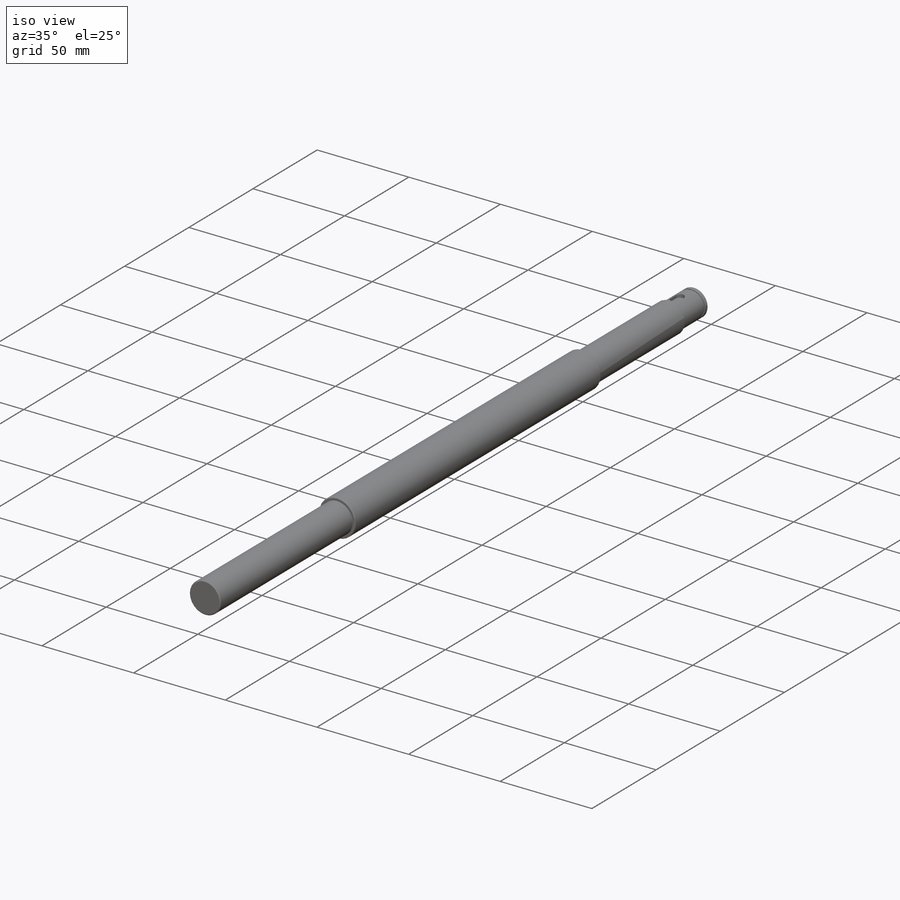
[diagram: iso view]
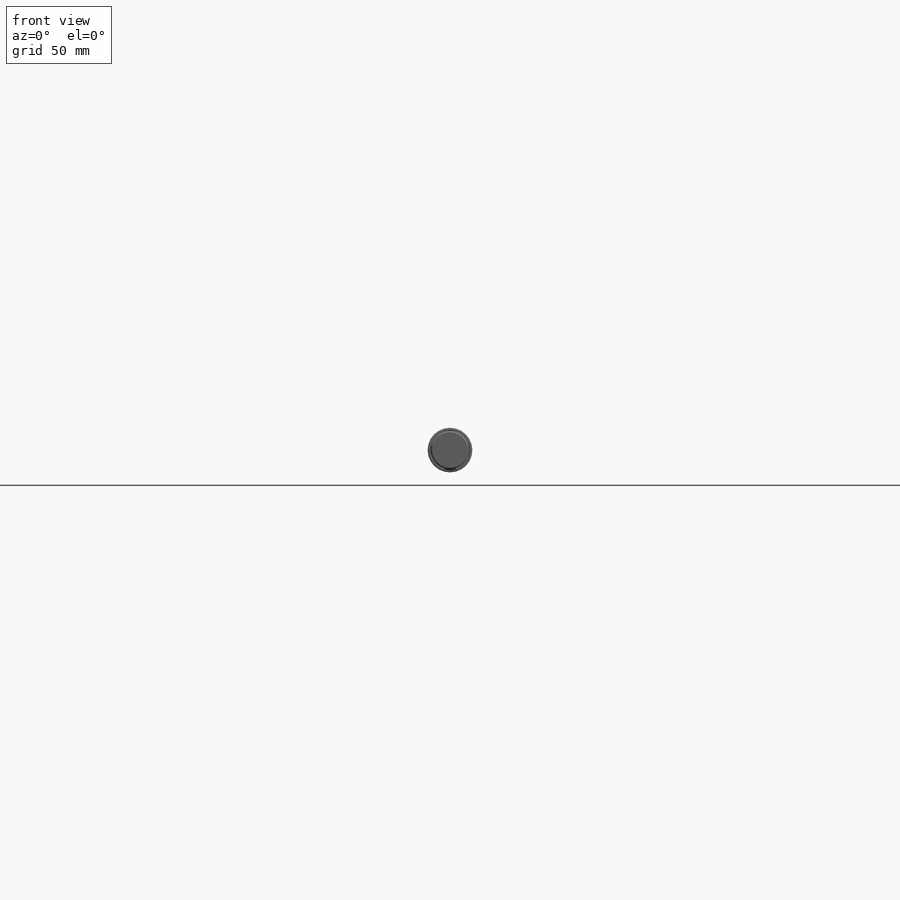
[diagram: front view]
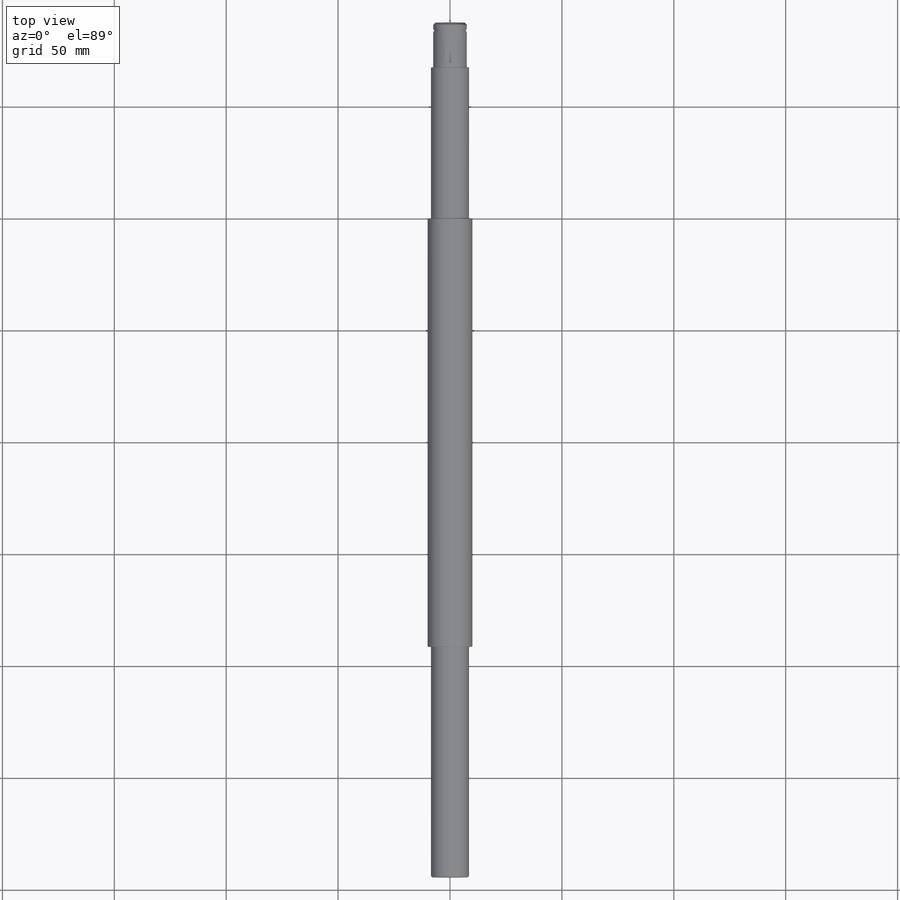
[diagram: top view]
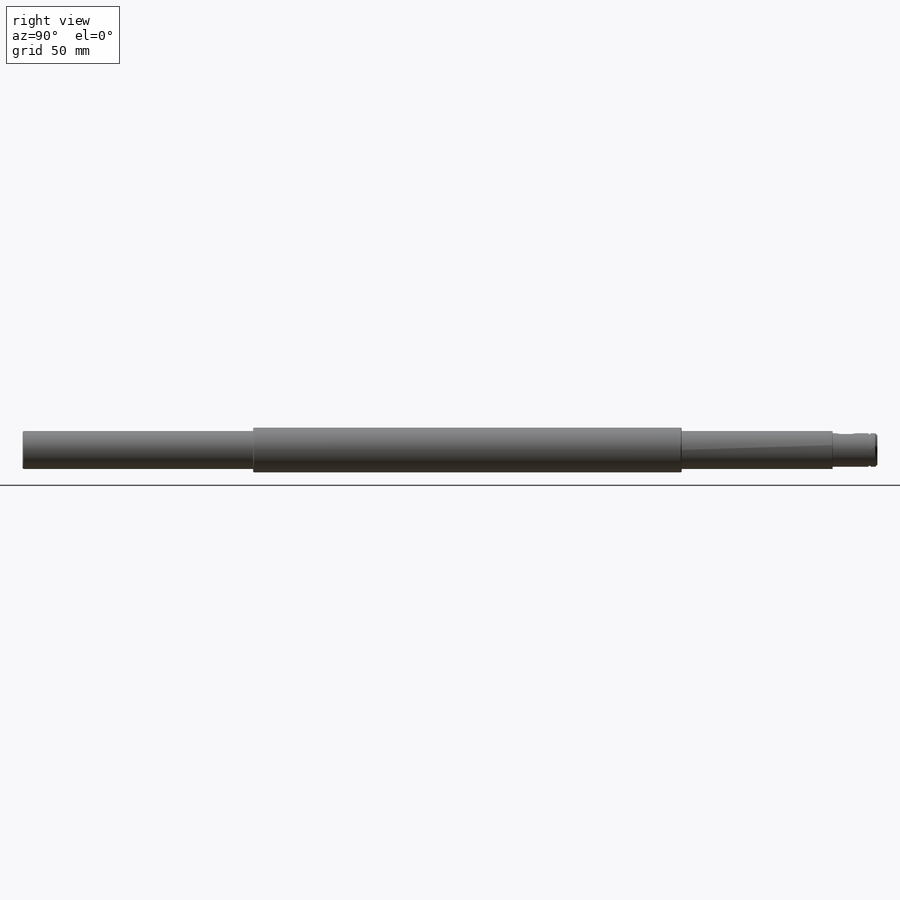
[diagram: right view]
SOLIDWORKS PART (.sldprt)
format: sldprt  version: not decoded by parser v0  size: 256,512 bytes
history: native  units: mm
features: sketch x6, extrude x4, fillet x3, plane x2, chamfer x2, material x1, cut_extrude x1 (+16 scaffold rows collapsed)
feature tree (35):
  scaffold x16  (default folders/planes/origin — collapsed)
  material  "AISI 1045 Steel, cold drawn"
  sketch  "Sketch1"  dims[D1=20.0mm]
  extrude  "Boss-Extrude1"  Depth=191.5mm
  sketch  "Sketch2"  dims[D1=17.0mm]
  extrude  "Boss-Extrude2"  Depth=103mm
  sketch  "Sketch4"  dims[D1=17.0mm]
  extrude  "Boss-Extrude3"  Depth=67.5mm
  fillet  "Fillet1"  Radius=0.5mm
  fillet  "Fillet2"  Radius=0.5mm
  plane  "Plane1"  Offset=7.5mm
  sketch  "Sketch6"  dims[D1=15.0mm]
  extrude  "Boss-Extrude4"  Depth=20mm
  sketch  "Sketch7"  dims[c1.D4=2.25mm c1.D1=4.0mm c1.D2=4.5mm c1.D3=2.25mm c2.D4=12.0mm]
  cut_extrude  "Cut-Extrude1"  Depth=1.8mm
  plane  "Plane2"  Offset=83.5mm
  sketch  "Sketch8"  dims[c1.D1=14.15mm c2.D1=1.0mm c2.D5=10.0mm c2.D6=10.0mm c2.D7=5.0mm]
  fillet  "Fillet3"  Radius=0.25mm
  chamfer  "Chamfer1"  Distance=1mm Angle=45deg
  chamfer  "Chamfer2"  Distance=0.5mm Angle=45deg
decode coverage: 16 of 16 modeling features carry decoded parameters
note: suppression state not decoded; provenance and decode notes live in map.json
